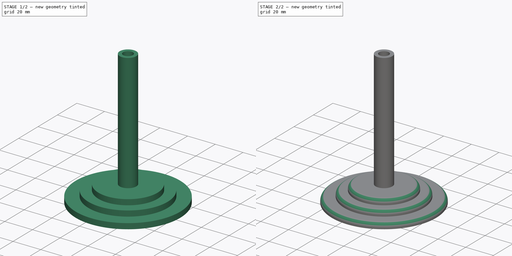
[diagram: build sequence overview — one tinted view per stage of 2, left to right]
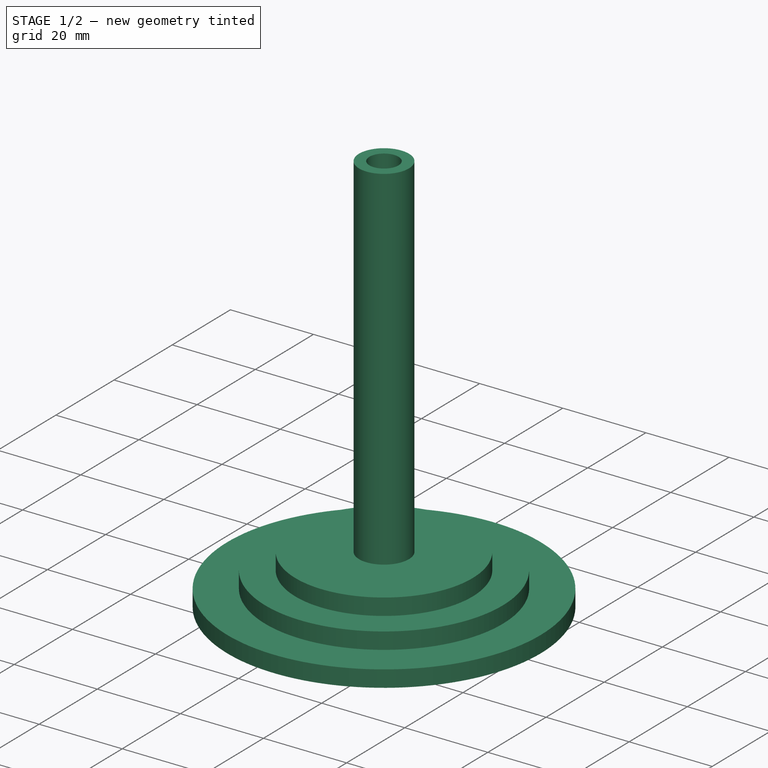
[diagram: stage 1 of 2 — iso view after this stage's code; geometry added in this stage tinted green]
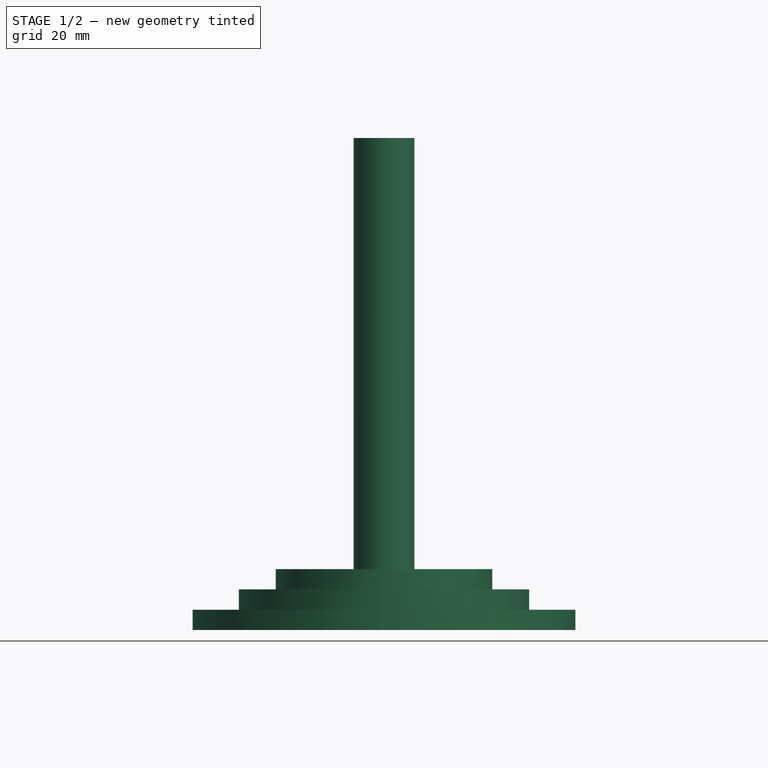
[diagram: stage 1 of 2 — front view after this stage's code; geometry added in this stage tinted green]
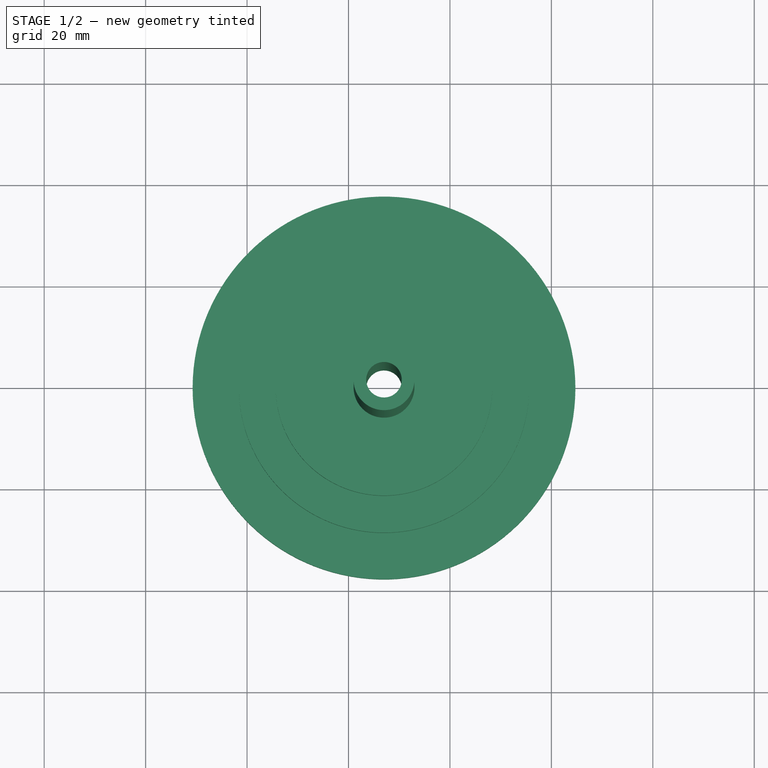
[diagram: stage 1 of 2 — top view after this stage's code; geometry added in this stage tinted green]
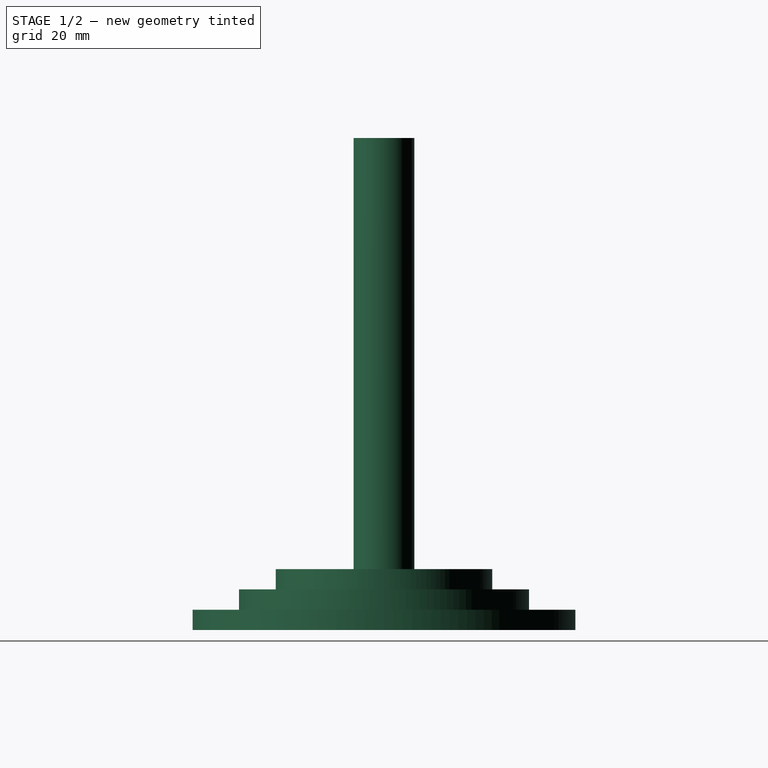
[diagram: stage 1 of 2 — right view after this stage's code; geometry added in this stage tinted green]
FCSTD DOCUMENT  (FreeCAD 0.16R6712 (Git))
Label: mi soporte BASE
License: All rights reserved
LicenseURL: http://en.wikipedia.org/wiki/All_rights_reserved
objects: Sketcher::SketchObject×1, PartDesign::Revolution×1, PartDesign::Fillet×1
note: 4 computed .brp shape members not serialized (recipe doc carries the construction recipe); baked Part::Feature solids carry a one-line shape summary decoded from their .brp

FEATURE [Sketcher::SketchObject] Sketch
  Placement = pos=(7,0,0) rot=(1,0,0;1.5708rad)
  sketch-geometry (10):
    g0: LineSegment StartX=37.733 StartY=-7.91416 StartZ=0 EndX=37.733 EndY=-3.91416 EndZ=0
    g1: LineSegment StartX=37.733 StartY=-3.91416 StartZ=0 EndX=28.6089 EndY=-3.91416 EndZ=0
    g2: LineSegment StartX=28.6089 StartY=-3.91416 StartZ=0 EndX=28.6089 EndY=0.08584 EndZ=0
    g3: LineSegment StartX=6 StartY=4.08584 StartZ=0 EndX=6 EndY=89.0858 EndZ=0
    g4: LineSegment StartX=6 StartY=89.0858 StartZ=0 EndX=3.5 EndY=89.0858 EndZ=0
    g5: LineSegment StartX=3.5 StartY=89.0858 StartZ=0 EndX=3.5 EndY=-7.91416 EndZ=0
    g6: LineSegment StartX=3.5 StartY=-7.91416 StartZ=0 EndX=37.733 EndY=-7.91416 EndZ=0
    g7: LineSegment StartX=28.6089 StartY=0.08584 StartZ=0 EndX=21.352 EndY=0.08584 EndZ=0
    g8: LineSegment StartX=21.352 StartY=0.08584 StartZ=0 EndX=21.352 EndY=4.08584 EndZ=0
    g9: LineSegment StartX=21.352 StartY=4.08584 StartZ=0 EndX=6 EndY=4.08584 EndZ=0
  constraints (26):
    c: Vertical(g0)
    c: Horizontal(g1)
    c: Coincident(g1,g2)
    c: Vertical(g2)
    c: Vertical(g3)
    c: Coincident(g3,g4)
    c: Horizontal(g4)
    c: Coincident(g4,g5)
    c: Vertical(g5)
    c: Coincident(g5,g6)
    c: Coincident(g6,g0)
    c: Horizontal(g6)
    c: DistanceX(g4,g3) = 2.5
    c: Coincident(g1,g0)
    c: DistanceX(g-1,g5) = 3.5
    c: DistanceY(g5,g5) = 97
    c: DistanceY(g0,g0) = 4
    c: DistanceY(g2,g2) = 4
    c: Coincident(g2,g7)
    c: Horizontal(g7)
    c: Coincident(g7,g8)
    c: Vertical(g8)
    c: Coincident(g8,g9)
    c: Coincident(g9,g3)
    c: Horizontal(g9)
    c: DistanceY(g8,g8) = 4
FEATURE [PartDesign::Revolution] Revolution
  Angle = 360
  Axis = (0,0,1)
  Base = (7,0,0)
  Placement = pos=(7,0,0) rot=(1,0,0;1.5708rad)
  ReferenceAxis = -> Sketch [V_Axis]
  Reversed = true
  Sketch = -> Sketch
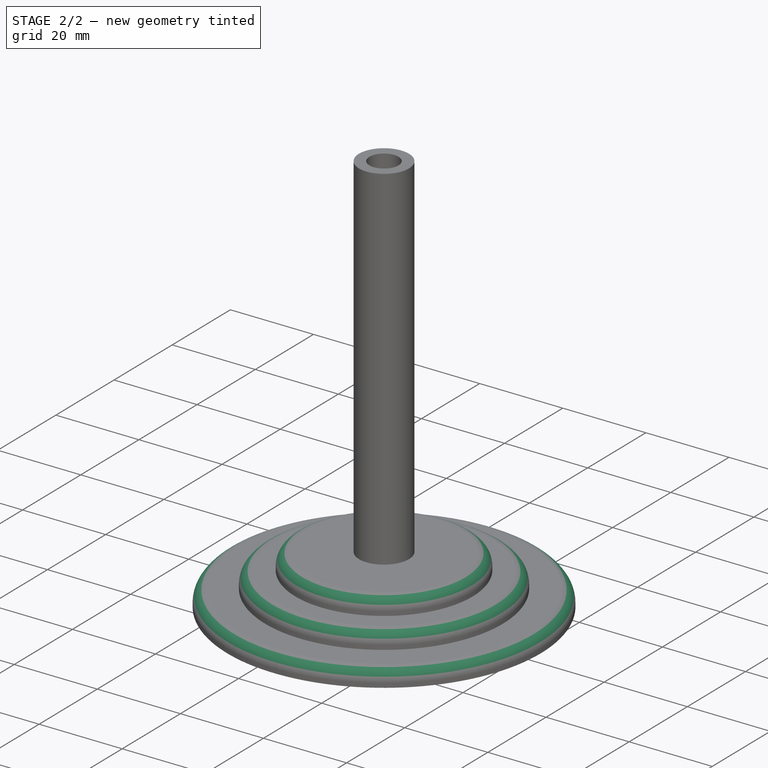
[diagram: stage 2 of 2 — iso view after this stage's code; geometry added in this stage tinted green]
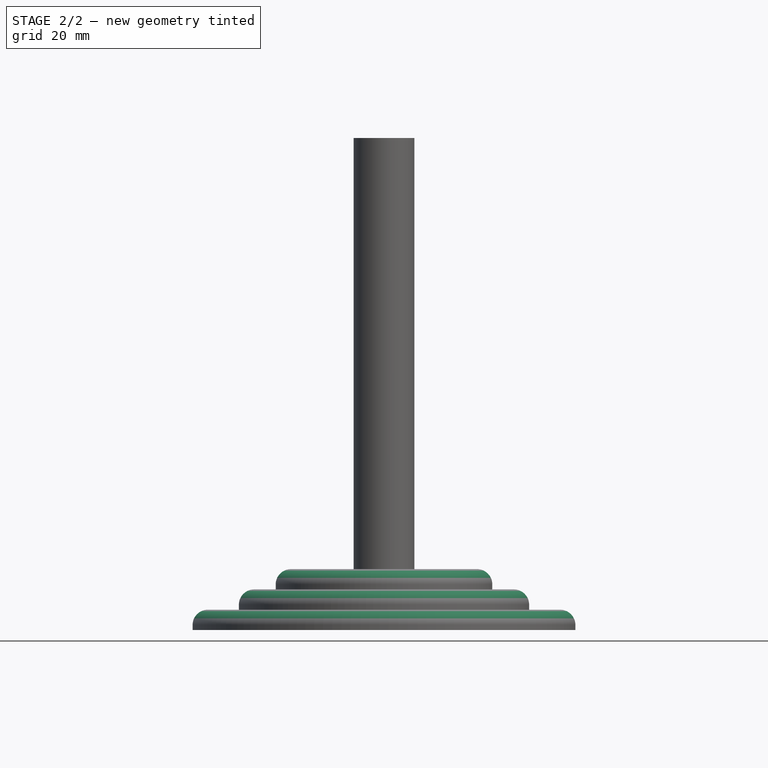
[diagram: stage 2 of 2 — front view after this stage's code; geometry added in this stage tinted green]
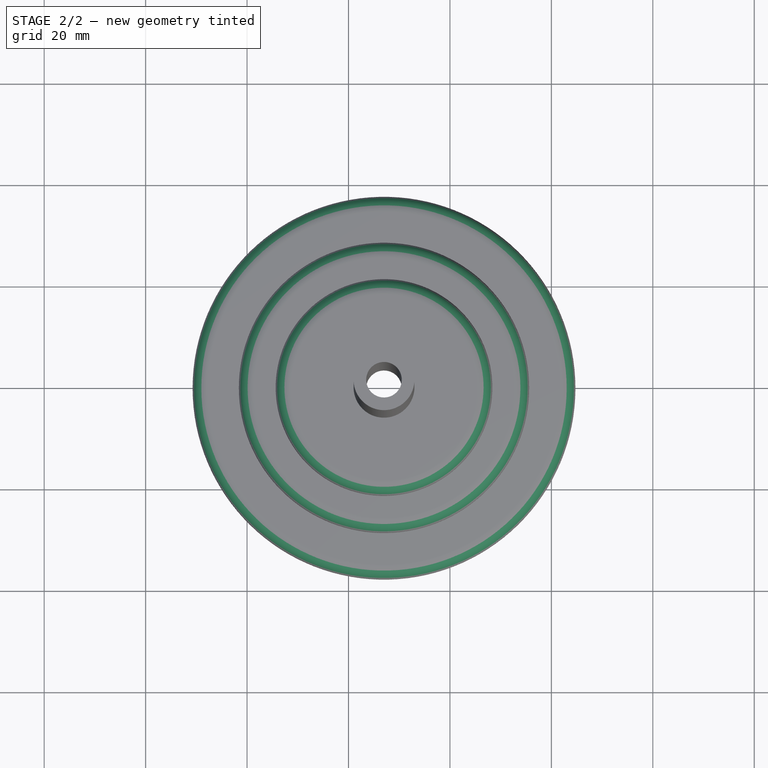
[diagram: stage 2 of 2 — top view after this stage's code; geometry added in this stage tinted green]
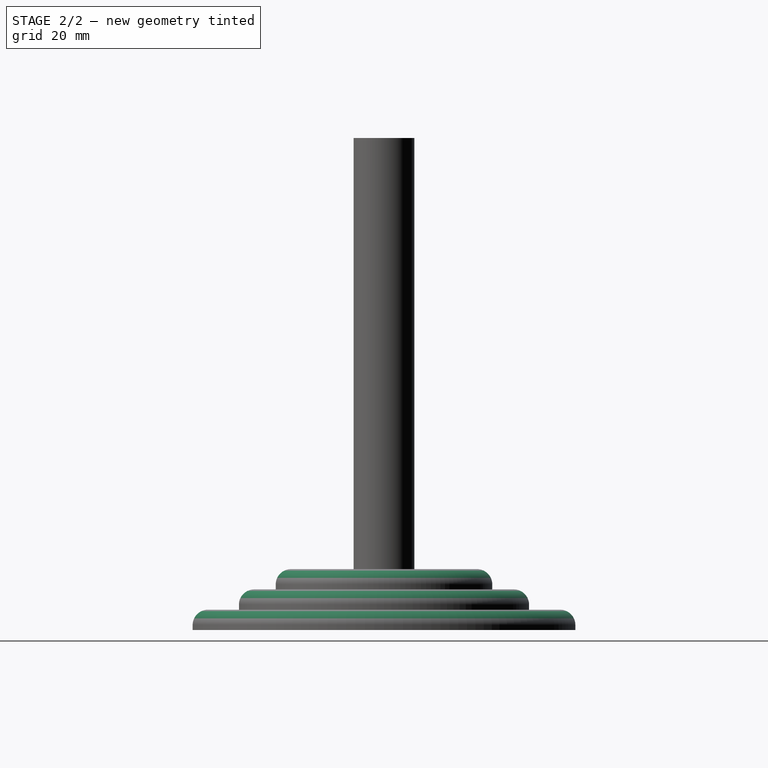
[diagram: stage 2 of 2 — right view after this stage's code; geometry added in this stage tinted green]
FEATURE [PartDesign::Fillet] Fillet
  Base = -> Revolution [Edge8,Edge5,Edge2]
  Placement = pos=(7,0,0) rot=(1,0,0;1.5708rad)
  Radius = 3
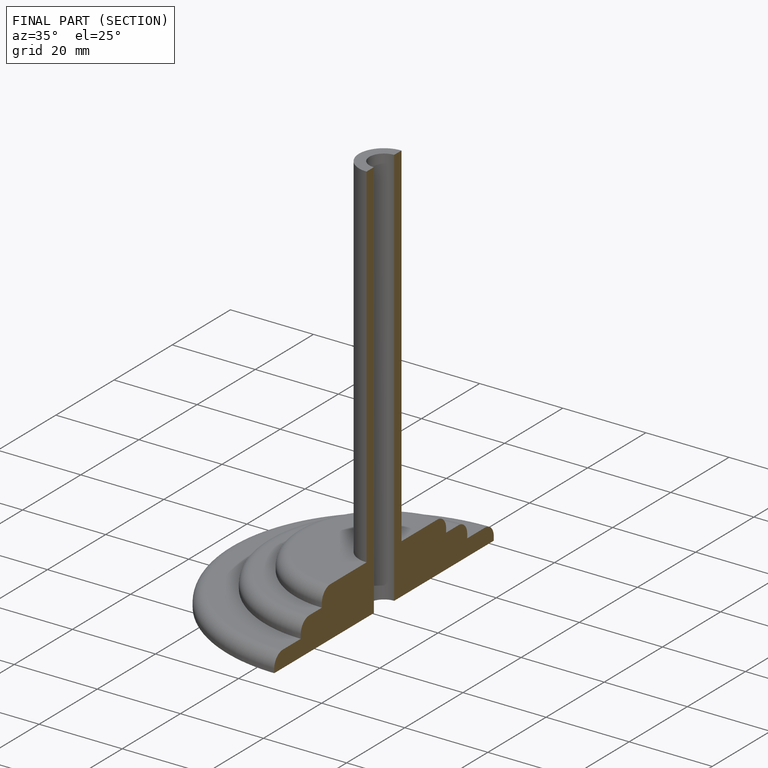
[diagram: finished part — half-section view (interior)]
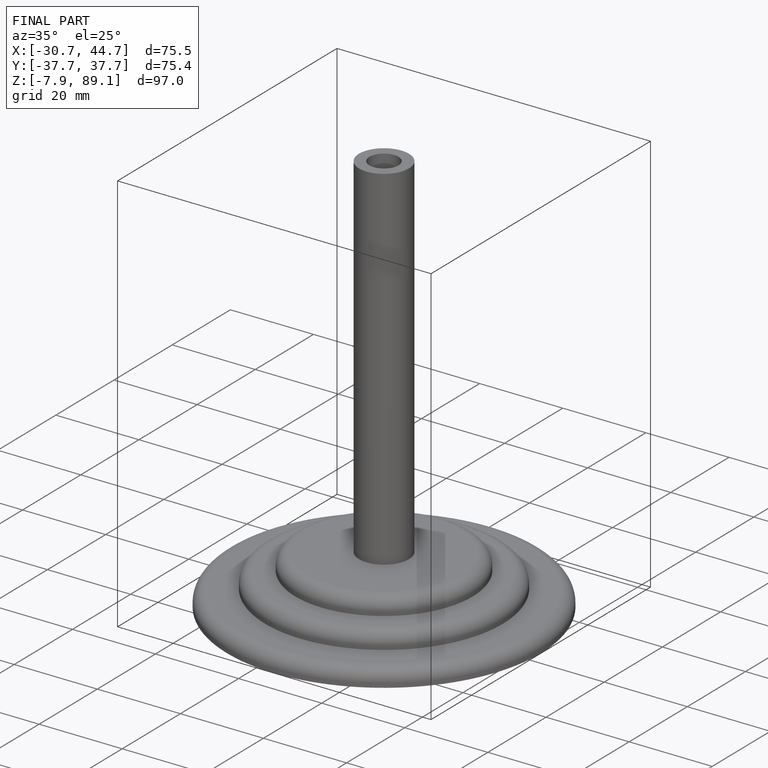
[diagram: finished part — iso view with bounding-box wireframe]
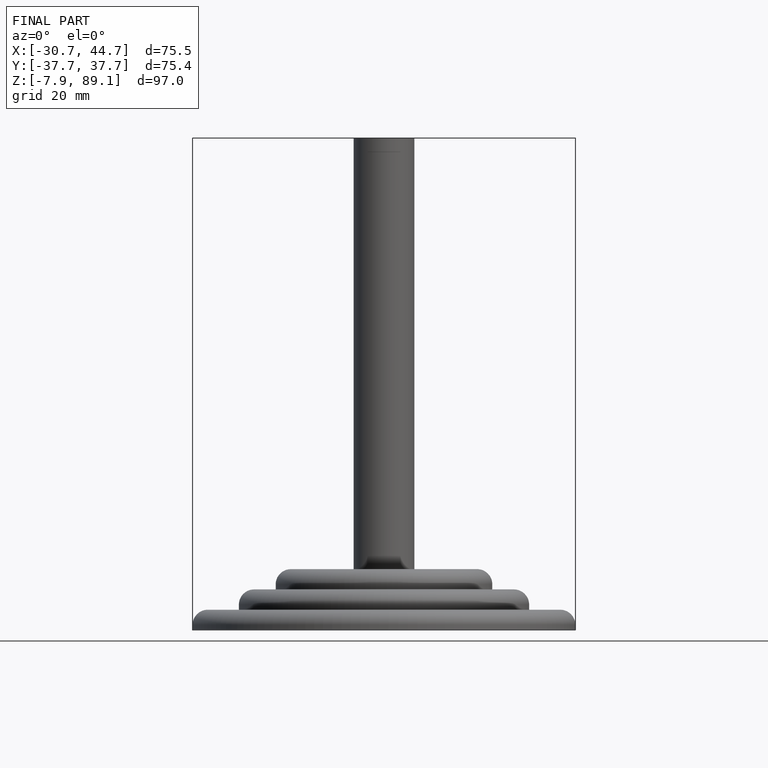
[diagram: finished part — front view with bounding-box wireframe]
